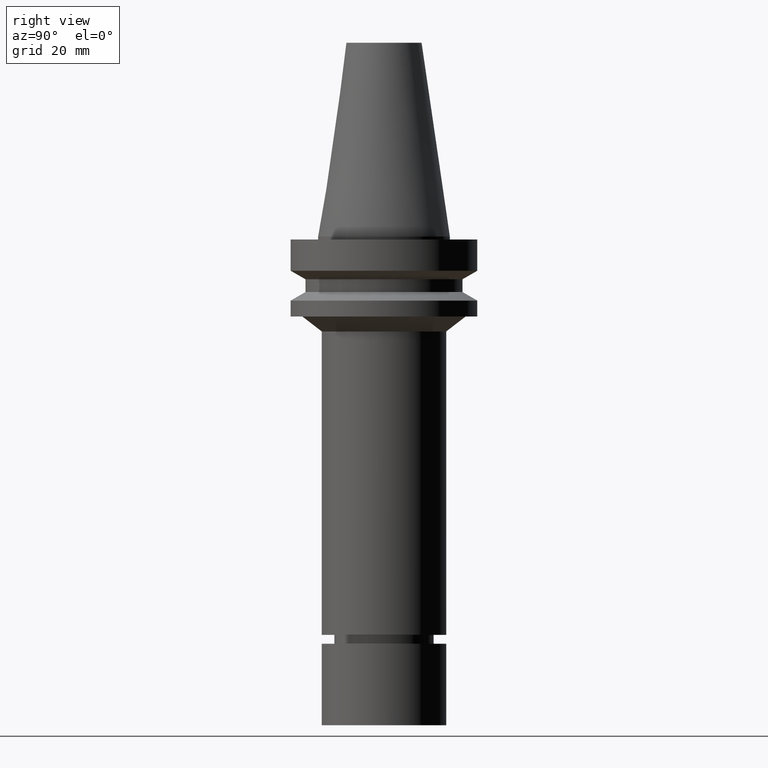
[diagram: clean part render]
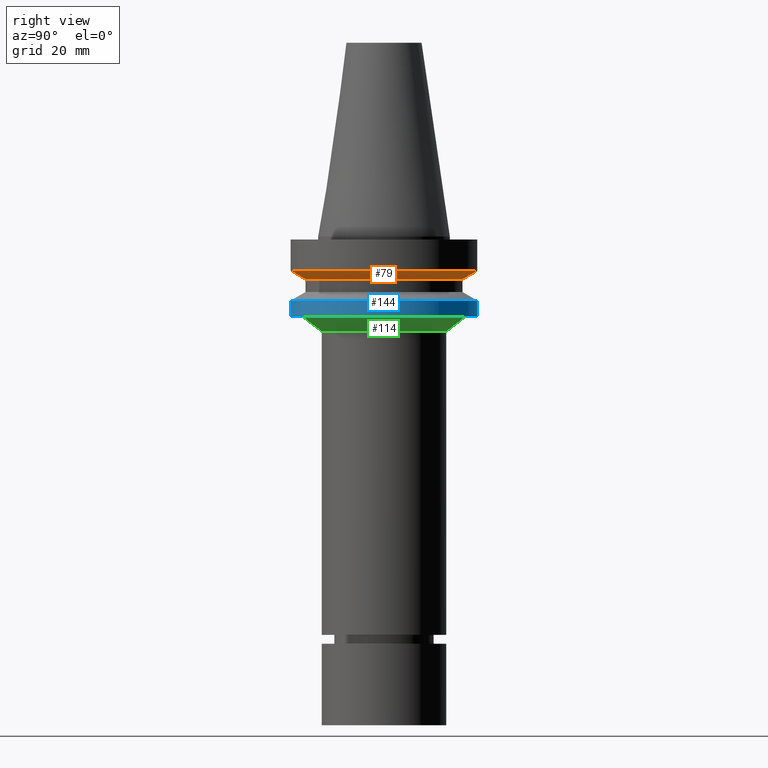
[diagram: same view with three faces highlighted in distinct colors, each labeled with its STEP entity id]
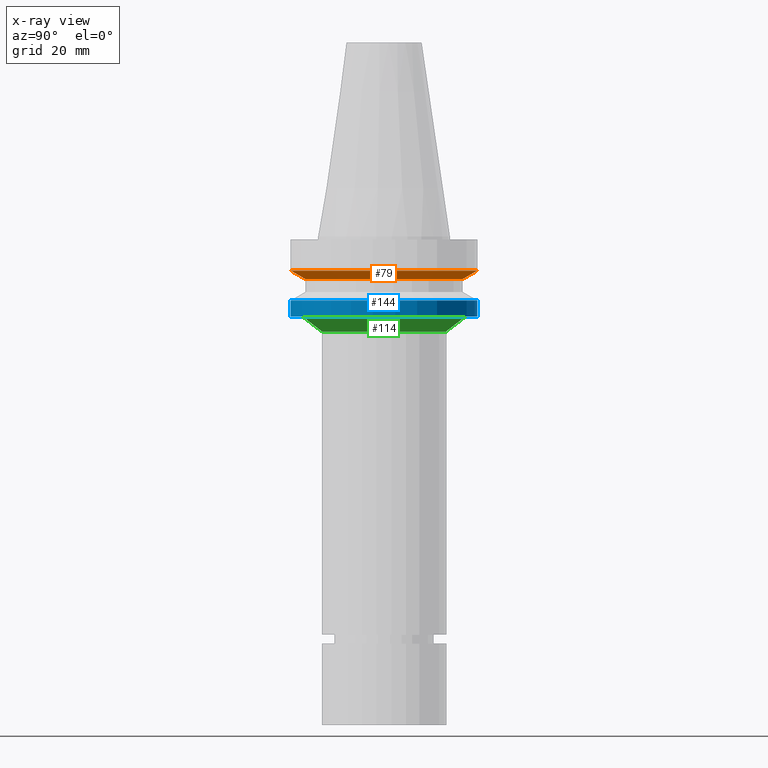
[diagram: x-ray of the same camera — body ghosted, the three highlighted faces saturated]
A machine part, right view with three faces highlighted in distinct colors.
The next image is the same camera in x-ray (body ghosted, the three faces saturated) — at least one of them is partly hidden behind the body in this view.
Their STEP definitions:

[orange] entity #79 — the highlighted conical surface has half-angle 60 deg.
#79=ADVANCED_FACE('Unnamed[1]',(#207,#208),#209,.T.);
#93=EDGE_CURVE('Unnamed[1]',#230,#230,#231,.T.);
#121=EDGE_CURVE('Unnamed[1]',#271,#271,#272,.T.);
#207=FACE_BOUND('',#384,.T.);
#208=FACE_BOUND('',#385,.T.);
#209=CONICAL_SURFACE('',#386,28.9999999999998,1.04719755119657);
#230=VERTEX_POINT('',#413);
#231=CIRCLE('',#414,26.4999999999994);
#271=VERTEX_POINT('',#465);
#272=CIRCLE('',#466,31.5000000000003);
#384=EDGE_LOOP('',(#587));
#385=EDGE_LOOP('',(#588));
#386=AXIS2_PLACEMENT_3D('',#589,#590,#591);
#413=CARTESIAN_POINT('',(8.8494551369045E-016,26.4999999999995,-14.4522569986152));
#414=AXIS2_PLACEMENT_3D('',#613,#614,#615);
#465=CARTESIAN_POINT('',(7.08182973902924E-016,31.5000000000004,-11.5655056526664));
#466=AXIS2_PLACEMENT_3D('',#655,#656,#657);
#587=ORIENTED_EDGE('',*,*,#93,.F.);
#588=ORIENTED_EDGE('',*,*,#121,.T.);
#589=CARTESIAN_POINT('',(7.96564243796687E-016,7.77858879298678E-014,-13.0088813256408));
#590=DIRECTION('',(-6.12323399573677E-017,-7.77674569766741E-018,1.0));
#591=DIRECTION('',(-5.30334106708964E-033,1.0,7.77674569766741E-018));
#613=CARTESIAN_POINT('',(8.84945513690451E-016,7.77971126954228E-014,-14.4522569986152));
#614=DIRECTION('',(6.12323399573677E-017,7.77674569773483E-018,-1.0));
#615=DIRECTION('',(-5.3033410670951E-033,1.0,7.77674569773483E-018));
#655=CARTESIAN_POINT('',(7.08182973902924E-016,7.77746631643129E-014,-11.5655056526664));
#656=DIRECTION('',(6.12323399573677E-017,7.7767456976107E-018,-1.0));
#657=DIRECTION('',(-5.30334106708505E-033,1.0,7.7767456976107E-018));

[blue] entity #144 — the highlighted cylindrical surface (bore or boss wall) has radius 31.5 mm, axis along (0, 0, -1).
#100=EDGE_CURVE('Unnamed[1]',#239,#239,#240,.T.);
#144=ADVANCED_FACE('Unnamed[1]',(#306,#307),#308,.T.);
#155=EDGE_CURVE('Unnamed[1]',#324,#324,#325,.T.);
#239=VERTEX_POINT('',#424);
#240=CIRCLE('',#425,31.5000000000003);
#306=FACE_BOUND('',#509,.T.);
#307=FACE_BOUND('',#510,.T.);
#308=CYLINDRICAL_SURFACE('',#511,31.5000000000005);
#324=VERTEX_POINT('',#531);
#325=CIRCLE('',#532,31.5000000000006);
#424=CARTESIAN_POINT('',(1.65327317884891E-015,31.5000000000004,-26.9999999999998));
#425=AXIS2_PLACEMENT_3D('',#620,#621,#622);
#509=EDGE_LOOP('',(#694));
#510=EDGE_LOOP('',(#695));
#511=AXIS2_PLACEMENT_3D('',#696,#697,#698);
#531=CARTESIAN_POINT('',(1.32473071268174E-015,31.5000000000007,-21.6344943473346));
#532=AXIS2_PLACEMENT_3D('',#716,#717,#718);
#620=CARTESIAN_POINT('',(1.65327317884891E-015,7.78946933018243E-014,-26.9999999999998));
#621=DIRECTION('',(6.12323399573677E-017,7.7767456976107E-018,-1.0));
#622=DIRECTION('',(-5.30334106708505E-033,1.0,7.7767456976107E-018));
#694=ORIENTED_EDGE('',*,*,#100,.F.);
#695=ORIENTED_EDGE('',*,*,#155,.T.);
#696=CARTESIAN_POINT('',(1.48900194576533E-015,7.78738302153242E-014,-24.3172471736672));
#697=DIRECTION('',(6.12323399573677E-017,7.77674569761066E-018,-1.0));
#698=DIRECTION('',(-5.30334106708502E-033,1.0,7.77674569761066E-018));
#716=CARTESIAN_POINT('',(1.32473071268174E-015,7.78529671288241E-014,-21.6344943473347));
#717=DIRECTION('',(6.12323399573677E-017,7.77674569761062E-018,-1.0));
#718=DIRECTION('',(-5.30334106708499E-033,1.0,7.77674569761062E-018));

[green] entity #114 — the highlighted conical surface has half-angle 52.381 deg.
#102=EDGE_CURVE('Unnamed[1]',#242,#242,#243,.T.);
#114=ADVANCED_FACE('Unnamed[1]',(#260,#261),#262,.T.);
#134=EDGE_CURVE('Unnamed[1]',#291,#291,#292,.T.);
#242=VERTEX_POINT('',#428);
#243=CIRCLE('',#429,21.0000000000004);
#260=FACE_BOUND('',#451,.T.);
#261=FACE_BOUND('',#452,.T.);
#262=CONICAL_SURFACE('',#453,24.285926013083,0.914225393497888);
#291=VERTEX_POINT('',#490);
#292=CIRCLE('',#491,27.5718520261655);
#428=CARTESIAN_POINT('',(1.96338026992049E-015,21.0000000000005,-32.0644331294128));
#429=AXIS2_PLACEMENT_3D('',#623,#624,#625);
#451=EDGE_LOOP('',(#642));
#452=EDGE_LOOP('',(#643));
#453=AXIS2_PLACEMENT_3D('',#644,#645,#646);
#490=CARTESIAN_POINT('',(1.65327317884891E-015,27.5718520261656,-26.9999999999998));
#491=AXIS2_PLACEMENT_3D('',#678,#679,#680);
#623=CARTESIAN_POINT('',(1.96338026992049E-015,7.79340781103746E-014,-32.0644331294128));
#624=DIRECTION('',(6.12323399573677E-017,7.77674569781578E-018,-1.0));
#625=DIRECTION('',(-5.30334106709069E-033,1.0,7.77674569781578E-018));
#642=ORIENTED_EDGE('',*,*,#102,.F.);
#643=ORIENTED_EDGE('',*,*,#134,.T.);
#644=CARTESIAN_POINT('',(1.8083267243847E-015,7.79143857060995E-014,-29.5322165647063));
#645=DIRECTION('',(-6.12323399573677E-017,-7.77674569757028E-018,1.0));
#646=DIRECTION('',(-5.3033410670882E-033,1.0,7.77674569757028E-018));
#678=CARTESIAN_POINT('',(1.65327317884891E-015,7.78946933018243E-014,-26.9999999999998));
#679=DIRECTION('',(6.12323399573676E-017,7.77674569761768E-018,-1.0));
#680=DIRECTION('',(-5.3033410670733E-033,1.0,7.77674569761768E-018));